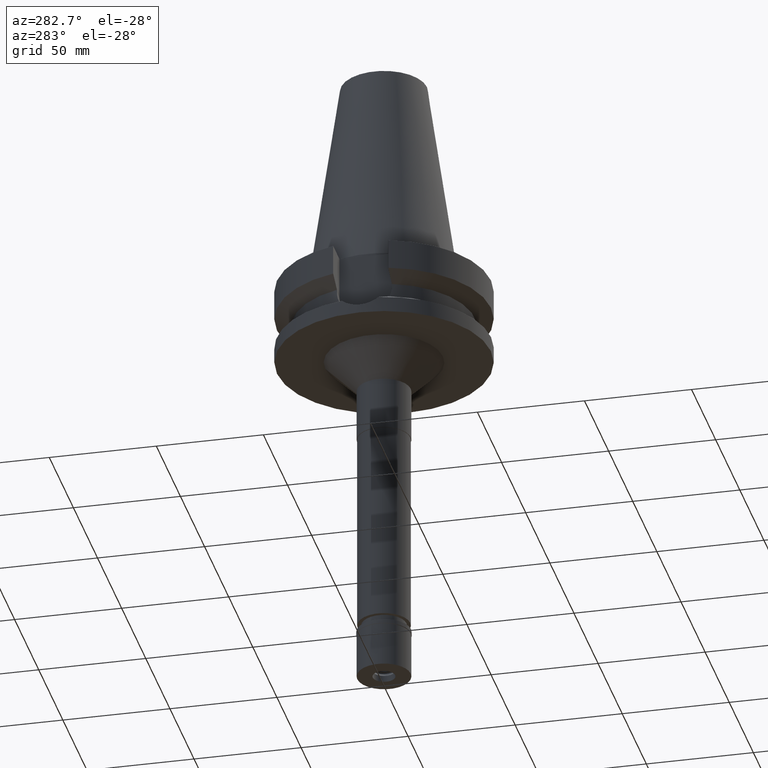
[diagram: clean part render]
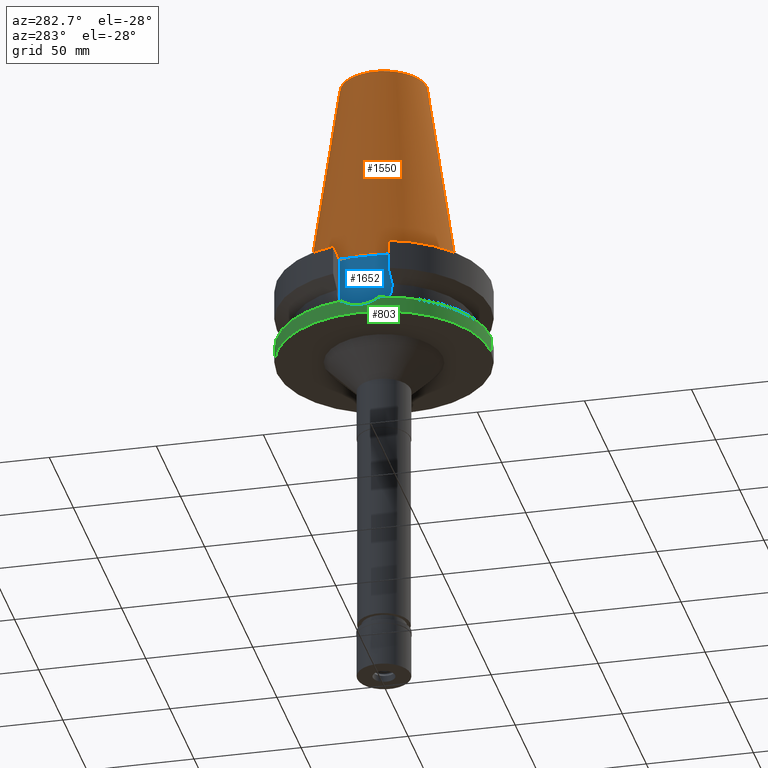
[diagram: same view with three faces highlighted in distinct colors, each labeled with its STEP entity id]
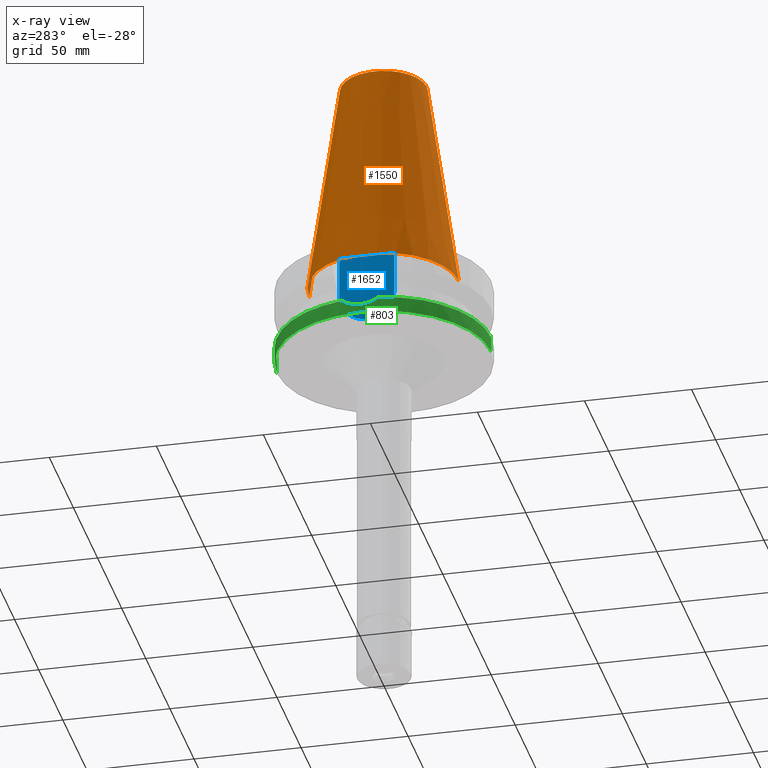
[diagram: x-ray of the same camera — body ghosted, the three highlighted faces saturated]
A machine part, auxiliary view with three faces highlighted in distinct colors.
The next image is the same camera in x-ray (body ghosted, the three faces saturated) — at least one of them is partly hidden behind the body in this view.
Their STEP definitions:

[orange] entity #1550 — the highlighted conical surface has half-angle 8.297 deg.
#26 = CARTESIAN_POINT ( 'NONE',  ( 0.0000000000000000000, 1.847992019912999597E-14, 50.89999999999999858 ) ) ;
#177 = VERTEX_POINT ( 'NONE', #1860 ) ;
#254 = ORIENTED_EDGE ( 'NONE', *, *, #1080, .F. ) ;
#287 = AXIS2_PLACEMENT_3D ( 'NONE', #1802, #564, #1318 ) ;
#292 = AXIS2_PLACEMENT_3D ( 'NONE', #928, #2842, #3142 ) ;
#401 = VECTOR ( 'NONE', #2032, 1000.000000000000114 ) ;
#471 = DIRECTION ( 'NONE',  ( 0.0000000000000000000, -0.1443043893538948075, -0.9895333461855641000 ) ) ;
#521 = ORIENTED_EDGE ( 'NONE', *, *, #941, .T. ) ;
#564 = DIRECTION ( 'NONE',  ( 0.0000000000000000000, 0.0000000000000000000, -1.000000000000000000 ) ) ;
#574 = VECTOR ( 'NONE', #471, 1000.000000000000114 ) ;
#596 = VERTEX_POINT ( 'NONE', #896 ) ;
#692 = ORIENTED_EDGE ( 'NONE', *, *, #2236, .F. ) ;
#896 = CARTESIAN_POINT ( 'NONE',  ( 0.0000000000000000000, 34.92499999999999716, 4.476419235289000232E-13 ) ) ;
#928 = CARTESIAN_POINT ( 'NONE',  ( 0.0000000000000000000, 1.847992019912999597E-14, 3.979039320256999774E-13 ) ) ;
#941 = EDGE_CURVE ( 'NONE', #177, #2528, #2281, .T. ) ;
#1080 = EDGE_CURVE ( 'NONE', #2453, #596, #1662, .T. ) ;
#1318 = DIRECTION ( 'NONE',  ( 0.0000000000000000000, -1.000000000000000000, 0.0000000000000000000 ) ) ;
#1495 = CARTESIAN_POINT ( 'NONE',  ( 0.0000000000000000000, -20.07942971896000017, 101.7999999999999972 ) ) ;
#1523 = LINE ( 'NONE', #2518, #401 ) ;
#1550 = ADVANCED_FACE ( 'NONE', ( #2996 ), #2176, .T. ) ;
#1551 = EDGE_CURVE ( 'NONE', #2528, #596, #1523, .T. ) ;
#1662 = CIRCLE ( 'NONE', #292, 34.92499999999999716 ) ;
#1758 = DIRECTION ( 'NONE',  ( 0.0000000000000000000, 0.0000000000000000000, -1.000000000000000000 ) ) ;
#1802 = CARTESIAN_POINT ( 'NONE',  ( 0.0000000000000000000, 1.847992019912999597E-14, 101.7999999999999972 ) ) ;
#1860 = CARTESIAN_POINT ( 'NONE',  ( 0.0000000000000000000, -20.07942971896000017, 101.7999999999999972 ) ) ;
#1967 = EDGE_LOOP ( 'NONE', ( #254, #692, #521, #2757 ) ) ;
#2032 = DIRECTION ( 'NONE',  ( 0.0000000000000000000, 0.1443043893538948075, -0.9895333461855641000 ) ) ;
#2099 = CARTESIAN_POINT ( 'NONE',  ( 0.0000000000000000000, -34.92499999999999716, 4.476419235289000232E-13 ) ) ;
#2176 = CONICAL_SURFACE ( 'NONE', #2284, 27.50221485948000222, 0.1448099680379422438 ) ;
#2236 = EDGE_CURVE ( 'NONE', #177, #2453, #2749, .T. ) ;
#2281 = CIRCLE ( 'NONE', #287, 20.07942971896000017 ) ;
#2284 = AXIS2_PLACEMENT_3D ( 'NONE', #26, #1758, #2760 ) ;
#2453 = VERTEX_POINT ( 'NONE', #2099 ) ;
#2518 = CARTESIAN_POINT ( 'NONE',  ( 0.0000000000000000000, 20.07942971896000017, 101.7999999999999972 ) ) ;
#2528 = VERTEX_POINT ( 'NONE', #2898 ) ;
#2749 = LINE ( 'NONE', #1495, #574 ) ;
#2757 = ORIENTED_EDGE ( 'NONE', *, *, #1551, .T. ) ;
#2760 = DIRECTION ( 'NONE',  ( 0.0000000000000000000, -1.000000000000000000, 0.0000000000000000000 ) ) ;
#2842 = DIRECTION ( 'NONE',  ( 0.0000000000000000000, 0.0000000000000000000, -1.000000000000000000 ) ) ;
#2898 = CARTESIAN_POINT ( 'NONE',  ( 0.0000000000000000000, 20.07942971896000017, 101.7999999999999972 ) ) ;
#2996 = FACE_OUTER_BOUND ( 'NONE', #1967, .T. ) ;
#3142 = DIRECTION ( 'NONE',  ( 0.0000000000000000000, -1.000000000000000000, 0.0000000000000000000 ) ) ;

[blue] entity #1652 — the highlighted planar face has unit normal (-1, 0, 0).
#74 = VECTOR ( 'NONE', #2256, 1000.000000000000000 ) ;
#88 = DIRECTION ( 'NONE',  ( 0.0000000000000000000, 0.0000000000000000000, 1.000000000000000000 ) ) ;
#196 = CIRCLE ( 'NONE', #1259, 12.84999999999999964 ) ;
#222 = DIRECTION ( 'NONE',  ( 0.0000000000000000000, 0.0000000000000000000, -1.000000000000000000 ) ) ;
#258 = CARTESIAN_POINT ( 'NONE',  ( -35.39999999999999858, 12.84999999999999964, -21.14999999999999858 ) ) ;
#273 = CARTESIAN_POINT ( 'NONE',  ( -35.39999999999999858, -12.84999999999999964, -21.14999999999999858 ) ) ;
#274 = EDGE_CURVE ( 'NONE', #2829, #795, #1885, .T. ) ;
#320 = DIRECTION ( 'NONE',  ( -1.000000000000000000, 0.0000000000000000000, 0.0000000000000000000 ) ) ;
#487 = EDGE_CURVE ( 'NONE', #3021, #795, #2779, .T. ) ;
#795 = VERTEX_POINT ( 'NONE', #2657 ) ;
#1006 = EDGE_LOOP ( 'NONE', ( #1183, #1032, #2139, #2429 ) ) ;
#1032 = ORIENTED_EDGE ( 'NONE', *, *, #2706, .F. ) ;
#1035 = VECTOR ( 'NONE', #222, 1000.000000000000000 ) ;
#1183 = ORIENTED_EDGE ( 'NONE', *, *, #274, .F. ) ;
#1259 = AXIS2_PLACEMENT_3D ( 'NONE', #2401, #1524, #1971 ) ;
#1317 = CARTESIAN_POINT ( 'NONE',  ( -35.39999999999999858, -12.84999999999999964, -1.500000000000000000 ) ) ;
#1524 = DIRECTION ( 'NONE',  ( 1.000000000000000000, 0.0000000000000000000, 0.0000000000000000000 ) ) ;
#1576 = FACE_OUTER_BOUND ( 'NONE', #1006, .T. ) ;
#1599 = CARTESIAN_POINT ( 'NONE',  ( -35.39999999999999858, 12.84999999999999964, -21.14999999999999858 ) ) ;
#1626 = CARTESIAN_POINT ( 'NONE',  ( -35.39999999999999858, 2.015768631397000034E-14, 0.0000000000000000000 ) ) ;
#1652 = ADVANCED_FACE ( 'NONE', ( #1576 ), #2562, .T. ) ;
#1770 = AXIS2_PLACEMENT_3D ( 'NONE', #1626, #320, #2327 ) ;
#1854 = CARTESIAN_POINT ( 'NONE',  ( -35.39999999999999858, -12.84999999999999964, -1.500000000000000000 ) ) ;
#1885 = LINE ( 'NONE', #1599, #3203 ) ;
#1971 = DIRECTION ( 'NONE',  ( 0.0000000000000000000, -1.000000000000000000, 0.0000000000000000000 ) ) ;
#2139 = ORIENTED_EDGE ( 'NONE', *, *, #2836, .F. ) ;
#2209 = CARTESIAN_POINT ( 'NONE',  ( -35.39999999999999858, -12.84999999999999964, -1.500000000000000000 ) ) ;
#2246 = VERTEX_POINT ( 'NONE', #273 ) ;
#2256 = DIRECTION ( 'NONE',  ( 0.0000000000000000000, 1.000000000000000000, 0.0000000000000000000 ) ) ;
#2327 = DIRECTION ( 'NONE',  ( 0.0000000000000000000, 0.0000000000000000000, 1.000000000000000000 ) ) ;
#2401 = CARTESIAN_POINT ( 'NONE',  ( -35.39999999999999858, 1.497743035356999952E-14, -21.14999999999999858 ) ) ;
#2429 = ORIENTED_EDGE ( 'NONE', *, *, #487, .T. ) ;
#2562 = PLANE ( 'NONE',  #1770 ) ;
#2657 = CARTESIAN_POINT ( 'NONE',  ( -35.39999999999999858, 12.84999999999999964, -1.500000000000000000 ) ) ;
#2698 = LINE ( 'NONE', #2209, #1035 ) ;
#2706 = EDGE_CURVE ( 'NONE', #2246, #2829, #196, .T. ) ;
#2779 = LINE ( 'NONE', #1317, #74 ) ;
#2829 = VERTEX_POINT ( 'NONE', #258 ) ;
#2836 = EDGE_CURVE ( 'NONE', #3021, #2246, #2698, .T. ) ;
#3021 = VERTEX_POINT ( 'NONE', #1854 ) ;
#3203 = VECTOR ( 'NONE', #88, 1000.000000000000000 ) ;

[green] entity #803 — the highlighted cylindrical surface (partial cylindrical patch) has radius 50 mm, axis along (0, 0, -1).
#67 = AXIS2_PLACEMENT_3D ( 'NONE', #2087, #365, #2830 ) ;
#73 = CARTESIAN_POINT ( 'NONE',  ( -49.37891072581928853, 7.861784144697212540, -31.32216869955874117 ) ) ;
#97 = CARTESIAN_POINT ( 'NONE',  ( -49.47566580363890409, 7.222569679405411058, -31.77964915190125694 ) ) ;
#120 = CARTESIAN_POINT ( 'NONE',  ( -49.55614273363831046, 6.647481784021307405, -32.14697738337603283 ) ) ;
#156 = CARTESIAN_POINT ( 'NONE',  ( -49.56395370294561786, -6.589055712436058698, -32.18213532682739242 ) ) ;
#168 = DIRECTION ( 'NONE',  ( 0.0000000000000000000, 0.0000000000000000000, -1.000000000000000000 ) ) ;
#169 = CARTESIAN_POINT ( 'NONE',  ( -49.79008146598565787, 4.576641034242752148, -33.15737214666248889 ) ) ;
#187 = DIRECTION ( 'NONE',  ( 0.0000000000000000000, -1.000000000000000000, 0.0000000000000000000 ) ) ;
#189 = CARTESIAN_POINT ( 'NONE',  ( -49.98151994490569194, -1.536776127999842645, -33.93130987504662244 ) ) ;
#205 = CARTESIAN_POINT ( 'NONE',  ( -49.59437430884471354, -6.356898428095435705, -32.31828320116223807 ) ) ;
#214 = CARTESIAN_POINT ( 'NONE',  ( -49.86316841607128936, 3.774661685810720702, -33.45988861134188852 ) ) ;
#231 = AXIS2_PLACEMENT_3D ( 'NONE', #2420, #168, #187 ) ;
#242 = EDGE_CURVE ( 'NONE', #2623, #2076, #2894, .T. ) ;
#286 = CARTESIAN_POINT ( 'NONE',  ( 0.0000000000000000000, 50.00000000000000000, -30.73730776426999967 ) ) ;
#304 = CARTESIAN_POINT ( 'NONE',  ( 0.0000000000000000000, -50.00000000000000000, -30.73730776426999967 ) ) ;
#365 = DIRECTION ( 'NONE',  ( 0.0000000000000000000, 0.0000000000000000000, -1.000000000000000000 ) ) ;
#373 = CARTESIAN_POINT ( 'NONE',  ( -49.32372953331958598, 8.203519560895918161, -31.05192037926012461 ) ) ;
#391 = VECTOR ( 'NONE', #813, 1000.000000000000000 ) ;
#423 = CYLINDRICAL_SURFACE ( 'NONE', #231, 50.00000000000000000 ) ;
#437 = EDGE_CURVE ( 'NONE', #2623, #2718, #1788, .T. ) ;
#442 = CARTESIAN_POINT ( 'NONE',  ( -49.79288518046909218, 4.546060315006345220, -33.16898483581422141 ) ) ;
#457 = CARTESIAN_POINT ( 'NONE',  ( -49.79024291478642539, -4.574903425280138158, -33.15803416393225689 ) ) ;
#475 = CARTESIAN_POINT ( 'NONE',  ( -49.26250064874000145, -8.556052234130000045, -30.73730776426999967 ) ) ;
#481 = DIRECTION ( 'NONE',  ( 0.0000000000000000000, 0.0000000000000000000, -1.000000000000000000 ) ) ;
#495 = EDGE_CURVE ( 'NONE', #1460, #2154, #2529, .T. ) ;
#519 = CARTESIAN_POINT ( 'NONE',  ( 0.0000000000000000000, -50.00000000000000000, -38.00000000000000000 ) ) ;
#525 = ORIENTED_EDGE ( 'NONE', *, *, #495, .T. ) ;
#615 = CARTESIAN_POINT ( 'NONE',  ( -49.50798015989381184, 6.996952393805100812, -31.92837050139864274 ) ) ;
#664 = CARTESIAN_POINT ( 'NONE',  ( -49.48027691417237861, -7.211450075866836507, -31.80475317990773121 ) ) ;
#682 = CARTESIAN_POINT ( 'NONE',  ( -49.55415699598480472, -6.662282079200167573, -32.13801721396449551 ) ) ;
#698 = CARTESIAN_POINT ( 'NONE',  ( -49.99918696137647345, 0.2913176022767850482, -33.99729381971920361 ) ) ;
#712 = CARTESIAN_POINT ( 'NONE',  ( -49.99978007005915259, 0.1277363647659873480, -33.99951339607089551 ) ) ;
#731 = CARTESIAN_POINT ( 'NONE',  ( -49.57420851431546538, -6.511617493550867941, -32.22817500999437357 ) ) ;
#803 = ADVANCED_FACE ( 'NONE', ( #2434 ), #423, .T. ) ;
#813 = DIRECTION ( 'NONE',  ( 0.0000000000000000000, -2.250196262218999978E-14, -1.000000000000000000 ) ) ;
#861 = CARTESIAN_POINT ( 'NONE',  ( -49.55322993647029506, 6.669162169120036232, -32.13384980539245106 ) ) ;
#908 = CARTESIAN_POINT ( 'NONE',  ( -49.79203021163970533, 4.555405786585231098, -33.16544452545582544 ) ) ;
#925 = VECTOR ( 'NONE', #3008, 1000.000000000000000 ) ;
#942 = CARTESIAN_POINT ( 'NONE',  ( -49.55878331873439180, -6.627792136048329397, -32.15886750764681068 ) ) ;
#944 = AXIS2_PLACEMENT_3D ( 'NONE', #1910, #1681, #1380 ) ;
#949 = CARTESIAN_POINT ( 'NONE',  ( 0.0000000000000000000, -50.00000000000000000, -30.73730776426999967 ) ) ;
#955 = CARTESIAN_POINT ( 'NONE',  ( -49.75319208405370119, 4.961948302843892655, -33.00370953053688794 ) ) ;
#970 = CARTESIAN_POINT ( 'NONE',  ( -49.55507279108477547, -6.655467508177089542, -32.14214692833172649 ) ) ;
#1059 = ORIENTED_EDGE ( 'NONE', *, *, #2840, .T. ) ;
#1191 = CARTESIAN_POINT ( 'NONE',  ( -49.99657010607809582, 0.6197521059954000933, -33.98745896375042719 ) ) ;
#1209 = CARTESIAN_POINT ( 'NONE',  ( -49.81880725730660942, -4.254068733774861499, -33.27613423594723940 ) ) ;
#1220 = CARTESIAN_POINT ( 'NONE',  ( -49.91493021346636993, 3.003896463532111039, -33.66817669967727511 ) ) ;
#1230 = CARTESIAN_POINT ( 'NONE',  ( -49.64367505664251468, -5.960659304261987756, -32.53565567104168821 ) ) ;
#1233 = ORIENTED_EDGE ( 'NONE', *, *, #2608, .T. ) ;
#1375 = CARTESIAN_POINT ( 'NONE',  ( -49.55497938655590673, 6.656146422035604360, -32.14173509723563882 ) ) ;
#1380 = DIRECTION ( 'NONE',  ( 0.0000000000000000000, 1.000000000000000000, 0.0000000000000000000 ) ) ;
#1418 = ORIENTED_EDGE ( 'NONE', *, *, #437, .F. ) ;
#1432 = CARTESIAN_POINT ( 'NONE',  ( -49.96641267306988965, 1.854385216360511235, -33.87144511961337656 ) ) ;
#1453 = CARTESIAN_POINT ( 'NONE',  ( -49.70815231122232092, 5.396331756573852445, -32.81362775786895014 ) ) ;
#1459 = CARTESIAN_POINT ( 'NONE',  ( 0.0000000000000000000, 0.0000000000000000000, -30.73730776426999967 ) ) ;
#1460 = VERTEX_POINT ( 'NONE', #1535 ) ;
#1472 = DIRECTION ( 'NONE',  ( -0.9852500129747439050, 0.1711210446826074982, 0.0000000000000000000 ) ) ;
#1535 = CARTESIAN_POINT ( 'NONE',  ( 0.0000000000000000000, 50.00000000000000000, -30.73730776426999967 ) ) ;
#1656 = CIRCLE ( 'NONE', #2066, 50.00000000000000000 ) ;
#1660 = EDGE_CURVE ( 'NONE', #2101, #2076, #2897, .T. ) ;
#1681 = DIRECTION ( 'NONE',  ( 0.0000000000000000000, 0.0000000000000000000, 1.000000000000000000 ) ) ;
#1683 = ORIENTED_EDGE ( 'NONE', *, *, #242, .T. ) ;
#1689 = CARTESIAN_POINT ( 'NONE',  ( -49.72680802973511760, 5.221633249062802129, -32.89276324337791380 ) ) ;
#1707 = CARTESIAN_POINT ( 'NONE',  ( -49.92886531838349384, -2.680927595815888242, -33.72320138124660360 ) ) ;
#1725 = CARTESIAN_POINT ( 'NONE',  ( -49.38324903636162588, -7.860828857642073508, -31.35774967245519917 ) ) ;
#1788 = LINE ( 'NONE', #304, #391 ) ;
#1871 = CARTESIAN_POINT ( 'NONE',  ( -49.52357036688878367, 6.886290594020089806, -31.99961560222638113 ) ) ;
#1905 = CARTESIAN_POINT ( 'NONE',  ( -49.76598423035032681, 4.832695556096261669, -33.05724367523468743 ) ) ;
#1910 = CARTESIAN_POINT ( 'NONE',  ( 0.0000000000000000000, 2.650625532074999626E-14, -38.00000000000000000 ) ) ;
#1940 = CARTESIAN_POINT ( 'NONE',  ( -49.55655204302914285, 6.644431293618793255, -32.14882155012384857 ) ) ;
#1956 = CARTESIAN_POINT ( 'NONE',  ( -49.99934626384183645, -0.7783924104206795258, -33.99780972340643359 ) ) ;
#1965 = CARTESIAN_POINT ( 'NONE',  ( -49.78714585122761349, 4.608515934860354157, -33.14520686593805010 ) ) ;
#2066 = AXIS2_PLACEMENT_3D ( 'NONE', #1459, #481, #1472 ) ;
#2076 = VERTEX_POINT ( 'NONE', #2137 ) ;
#2087 = CARTESIAN_POINT ( 'NONE',  ( 0.0000000000000000000, 0.0000000000000000000, -30.73730776426999967 ) ) ;
#2093 = CARTESIAN_POINT ( 'NONE',  ( -49.54076674223438204, 6.761186823774594679, -32.07757331902227804 ) ) ;
#2101 = VERTEX_POINT ( 'NONE', #2183 ) ;
#2137 = CARTESIAN_POINT ( 'NONE',  ( -49.26250064874000145, -8.556052234130000045, -30.73730776426999967 ) ) ;
#2154 = VERTEX_POINT ( 'NONE', #3146 ) ;
#2166 = CARTESIAN_POINT ( 'NONE',  ( -49.86770969753638383, -3.635792843504482619, -33.47650553529291528 ) ) ;
#2183 = CARTESIAN_POINT ( 'NONE',  ( -49.26250064874000145, 8.556052234130000045, -30.73730776426999967 ) ) ;
#2191 = CARTESIAN_POINT ( 'NONE',  ( -49.75837799898540936, -4.920711292985905594, -33.02594009596480618 ) ) ;
#2202 = CARTESIAN_POINT ( 'NONE',  ( -49.61106985579477424, -6.224615897756434535, -32.39218330777656263 ) ) ;
#2346 = CARTESIAN_POINT ( 'NONE',  ( -49.45261097644897319, 7.378715932141872713, -31.67219524102644357 ) ) ;
#2349 = CIRCLE ( 'NONE', #944, 50.00000000000000000 ) ;
#2407 = CARTESIAN_POINT ( 'NONE',  ( -49.99187456508006022, 0.9032426740135302001, -33.96962919629205402 ) ) ;
#2420 = CARTESIAN_POINT ( 'NONE',  ( 0.0000000000000000000, 2.650625532074999626E-14, 116.4399999999999977 ) ) ;
#2422 = CARTESIAN_POINT ( 'NONE',  ( -49.78020860952013749, 4.683043310472862153, -33.11642240103064694 ) ) ;
#2434 = FACE_OUTER_BOUND ( 'NONE', #3046, .T. ) ;
#2437 = CARTESIAN_POINT ( 'NONE',  ( -49.99991299091367836, -0.01387171427585815082, -34.00001339701658765 ) ) ;
#2454 = CARTESIAN_POINT ( 'NONE',  ( -49.90699458485645579, -3.063359793976638823, -33.63580153704953801 ) ) ;
#2466 = CARTESIAN_POINT ( 'NONE',  ( -49.99991418525083731, 0.01116271472627590293, -34.00001628486781158 ) ) ;
#2529 = LINE ( 'NONE', #286, #925 ) ;
#2608 = EDGE_CURVE ( 'NONE', #2154, #2718, #2349, .T. ) ;
#2623 = VERTEX_POINT ( 'NONE', #949 ) ;
#2674 = CARTESIAN_POINT ( 'NONE',  ( -49.60527657795491763, 6.280734339367840313, -32.36827992140754873 ) ) ;
#2687 = CARTESIAN_POINT ( 'NONE',  ( -49.79683695211745942, -4.502663508689112248, -33.18534950405179274 ) ) ;
#2709 = CARTESIAN_POINT ( 'NONE',  ( -49.66436399980445771, -5.785502173478889176, -32.62553262706295243 ) ) ;
#2718 = VERTEX_POINT ( 'NONE', #519 ) ;
#2830 = DIRECTION ( 'NONE',  ( 0.0000000000000000000, -1.000000000000000000, 0.0000000000000000000 ) ) ;
#2840 = EDGE_CURVE ( 'NONE', #2101, #1460, #1656, .T. ) ;
#2891 = CARTESIAN_POINT ( 'NONE',  ( -49.79360975992403127, -4.538122689854611203, -33.17198411703496674 ) ) ;
#2894 = CIRCLE ( 'NONE', #67, 50.00000000000000000 ) ;
#2897 = B_SPLINE_CURVE_WITH_KNOTS ( 'NONE', 3,
 ( #3105, #373, #73, #2346, #97, #615, #1871, #2093, #3092, #861, #1375, #120, #1940, #2674, #3186, #1453, #1689, #955, #1905, #2422, #1965, #169, #908, #442, #214, #1220, #1432, #2957, #2407, #1191, #698, #712, #2910, #2466, #2437, #1956, #189, #1707, #2454, #2166, #2942, #1209, #3168, #2687, #2891, #3138, #457, #2191, #2929, #2709, #1230, #2202, #205, #731, #156, #942, #3199, #970, #682, #664, #1725, #475 ),
 .UNSPECIFIED., .F., .F.,
 ( 4, 2, 2, 1, 1, 1, 1, 2, 2, 2, 2, 1, 1, 1, 2, 2, 2, 2, 1, 1, 1, 2, 2, 2, 2, 1, 1, 1, 1, 2, 2, 2, 2, 1, 1, 1, 1, 2, 2, 4 ),
 ( 0.0000000000000000000, 0.06249999999997638001, 0.09374999999996476430, 0.1093749999999586858, 0.1171874999999559241, 0.1210937499999546058, 0.1230468749999538702, 0.1240234374999532457, 0.1249999999999526074, 0.1874999999999385214, 0.2187499999999314715, 0.2343749999999280853, 0.2421874999999265865, 0.2460937499999257816, 0.2480468749999256706, 0.2499999999999255595, 0.3749999999999282241, 0.4374999999999295008, 0.4687499999999302780, 0.4843749999999306111, 0.4921874999999308331, 0.4960937499999309441, 0.4999999999999310552, 0.6249999999999342748, 0.6874999999999359401, 0.7187499999999367173, 0.7343749999999370504, 0.7421874999999372724, 0.7460937499999371614, 0.7480468749999371614, 0.7499999999999370504, 0.8124999999999414912, 0.8437499999999434896, 0.8593749999999444888, 0.8671874999999451550, 0.8710937499999452660, 0.8730468749999453770, 0.8740234374999458211, 0.8749999999999461542, 1.000000000000000000 ),
 .UNSPECIFIED. ) ;
#2910 = CARTESIAN_POINT ( 'NONE',  ( -49.99988097685892541, 0.05777274198021065815, -33.99989126171313814 ) ) ;
#2922 = ORIENTED_EDGE ( 'NONE', *, *, #1660, .F. ) ;
#2929 = CARTESIAN_POINT ( 'NONE',  ( -49.72328725708068475, -5.263682545861842144, -32.87883983831525114 ) ) ;
#2942 = CARTESIAN_POINT ( 'NONE',  ( -49.84644755711900643, -3.921701317445356771, -33.38981236980792033 ) ) ;
#2957 = CARTESIAN_POINT ( 'NONE',  ( -49.97921345352284561, 1.472277928462558005, -33.92105547461496684 ) ) ;
#3008 = DIRECTION ( 'NONE',  ( 0.0000000000000000000, 2.152361642122000014E-14, -1.000000000000000000 ) ) ;
#3046 = EDGE_LOOP ( 'NONE', ( #1059, #525, #1233, #1418, #1683, #2922 ) ) ;
#3092 = CARTESIAN_POINT ( 'NONE',  ( -49.54911688003673476, 6.699663359195981549, -32.11529720870265692 ) ) ;
#3105 = CARTESIAN_POINT ( 'NONE',  ( -49.26250064874000145, 8.556052234130000045, -30.73730776426999967 ) ) ;
#3138 = CARTESIAN_POINT ( 'NONE',  ( -49.79144986254112837, -4.561756691934231611, -33.16303606679041849 ) ) ;
#3146 = CARTESIAN_POINT ( 'NONE',  ( 0.0000000000000000000, 50.00000000000000000, -38.00000000000000000 ) ) ;
#3168 = CARTESIAN_POINT ( 'NONE',  ( -49.80427849006907337, -4.419869523657513177, -33.21613890173150452 ) ) ;
#3186 = CARTESIAN_POINT ( 'NONE',  ( -49.64898610878283591, 5.924049220464983279, -32.55967030365307835 ) ) ;
#3199 = CARTESIAN_POINT ( 'NONE',  ( -49.55655823010252448, -6.644396915703537410, -32.14884227875929668 ) ) ;